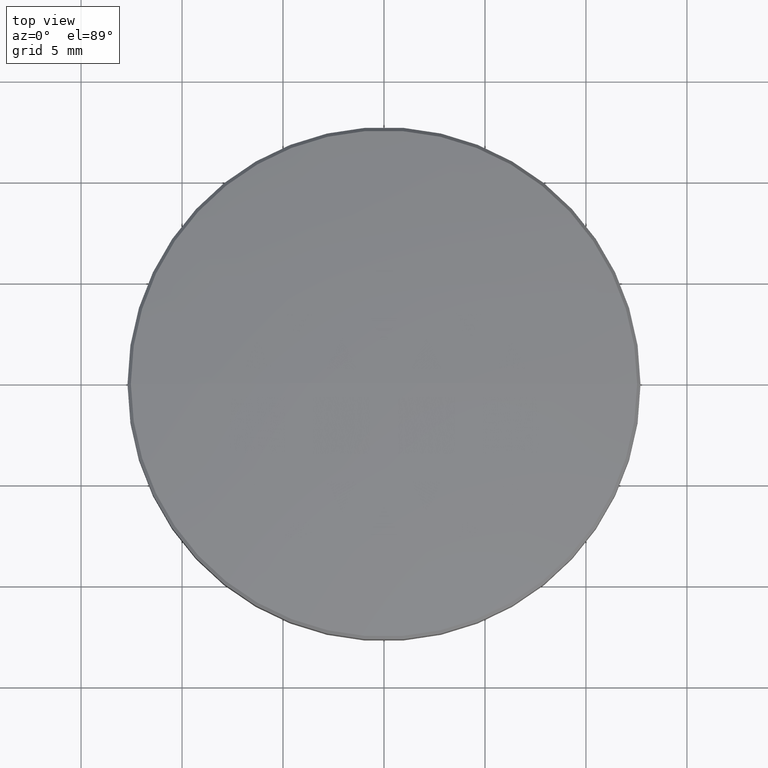
[diagram: clean part render]
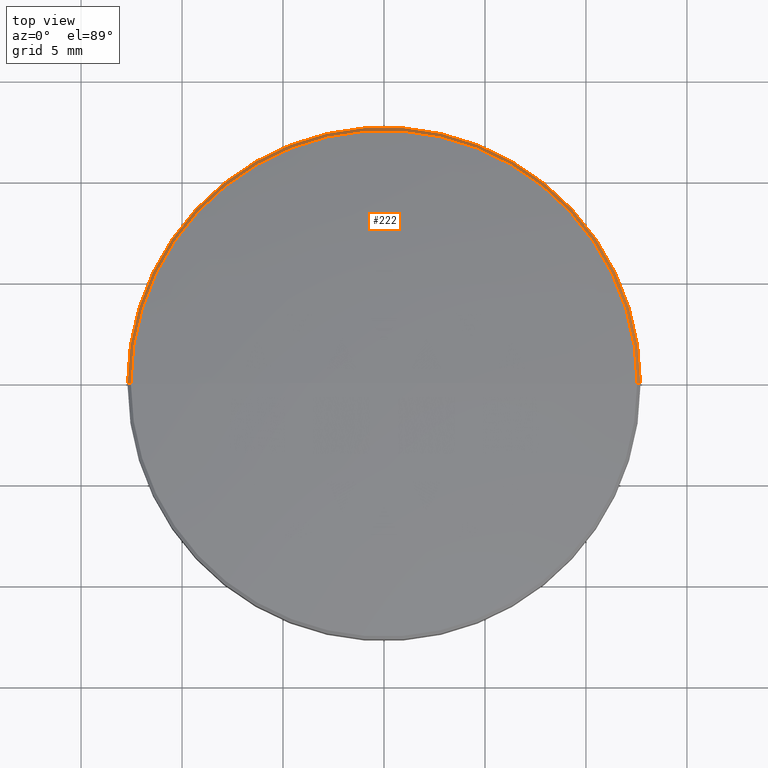
[diagram: same view with one face highlighted and labeled with its STEP entity id]
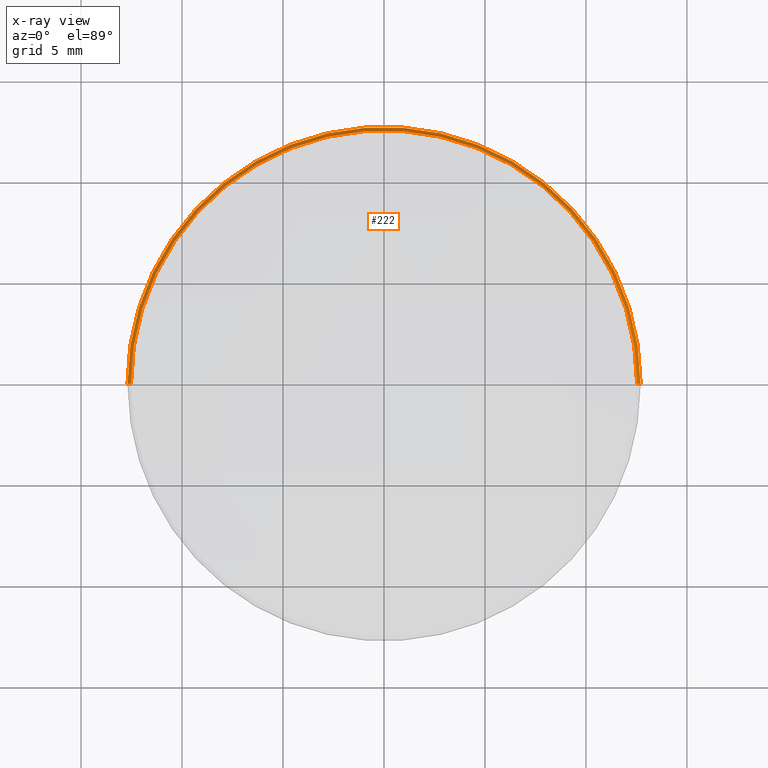
[diagram: x-ray of the same camera — body ghosted, the highlighted face saturated]
A machine part, top view. The second image highlights one B-rep face of the part: STEP entity #222.
The next image is the same camera in x-ray: the body ghosted, the highlighted face saturated — about 0% of this face is hidden behind the body in this view.
In plain terms, the highlighted conical surface has half-angle 39.963 deg.
Its self-contained STEP definition (entity closure, byte-faithful):
#5 = CIRCLE ( 'NONE', #192, 12.53498460677301907 ) ;
#34 = DIRECTION ( 'NONE',  ( 0.000000000000000000, 0.000000000000000000, -1.000000000000000000 ) ) ;
#50 = CARTESIAN_POINT ( 'NONE',  ( 0.000000000000000000, 0.000000000000000000, 3.895154035038178364 ) ) ;
#52 = VERTEX_POINT ( 'NONE', #93 ) ;
#62 = DIRECTION ( 'NONE',  ( 0.000000000000000000, 0.000000000000000000, -1.000000000000000000 ) ) ;
#71 = EDGE_CURVE ( 'NONE', #52, #95, #5, .T. ) ;
#75 = DIRECTION ( 'NONE',  ( -1.000000000000000000, 0.000000000000000000, 0.000000000000000000 ) ) ;
#87 = CARTESIAN_POINT ( 'NONE',  ( -12.53498460677301729, 0.000000000000000000, 3.895154035038178364 ) ) ;
#93 = CARTESIAN_POINT ( 'NONE',  ( 12.53498460677301729, 1.535092877604591061E-15, 3.895154035038178364 ) ) ;
#94 = DIRECTION ( 'NONE',  ( 0.6422915872619319178, 7.865803364595977467E-17, -0.7664603818414543746 ) ) ;
#95 = VERTEX_POINT ( 'NONE', #87 ) ;
#106 = EDGE_CURVE ( 'NONE', #191, #255, #224, .T. ) ;
#108 = AXIS2_PLACEMENT_3D ( 'NONE', #203, #62, #263 ) ;
#117 = FACE_OUTER_BOUND ( 'NONE', #141, .T. ) ;
#121 = CARTESIAN_POINT ( 'NONE',  ( 12.69999999999999929, 1.555301434917138433E-15, 3.698237612947643971 ) ) ;
#126 = EDGE_CURVE ( 'NONE', #52, #255, #155, .T. ) ;
#133 = ORIENTED_EDGE ( 'NONE', *, *, #195, .F. ) ;
#137 = CARTESIAN_POINT ( 'NONE',  ( -12.53498460677301729, 0.000000000000000000, 3.895154035038178364 ) ) ;
#138 = CARTESIAN_POINT ( 'NONE',  ( 12.53498460677301729, 1.535092877604592047E-15, 3.895154035038178364 ) ) ;
#141 = EDGE_LOOP ( 'NONE', ( #256, #257, #173, #133 ) ) ;
#142 = AXIS2_PLACEMENT_3D ( 'NONE', #206, #34, #75 ) ;
#145 = DIRECTION ( 'NONE',  ( -1.000000000000000000, 0.000000000000000000, 0.000000000000000000 ) ) ;
#153 = DIRECTION ( 'NONE',  ( -0.6422915872619319178, 0.000000000000000000, -0.7664603818414543746 ) ) ;
#155 = LINE ( 'NONE', #138, #209 ) ;
#173 = ORIENTED_EDGE ( 'NONE', *, *, #106, .F. ) ;
#174 = DIRECTION ( 'NONE',  ( -0.000000000000000000, -0.000000000000000000, 1.000000000000000000 ) ) ;
#180 = CARTESIAN_POINT ( 'NONE',  ( -12.69999999999999929, 0.000000000000000000, 3.698237612947643971 ) ) ;
#191 = VERTEX_POINT ( 'NONE', #180 ) ;
#192 = AXIS2_PLACEMENT_3D ( 'NONE', #50, #174, #145 ) ;
#195 = EDGE_CURVE ( 'NONE', #95, #191, #239, .T. ) ;
#203 = CARTESIAN_POINT ( 'NONE',  ( 0.000000000000000000, 0.000000000000000000, 3.698237612947643971 ) ) ;
#206 = CARTESIAN_POINT ( 'NONE',  ( 0.000000000000000000, 0.000000000000000000, 3.895154035038178364 ) ) ;
#209 = VECTOR ( 'NONE', #94, 1000.000000000000227 ) ;
#216 = VECTOR ( 'NONE', #153, 1000.000000000000227 ) ;
#222 = ADVANCED_FACE ( 'NONE', ( #117 ), #259, .T. ) ;
#224 = CIRCLE ( 'NONE', #108, 12.69999999999999929 ) ;
#239 = LINE ( 'NONE', #137, #216 ) ;
#255 = VERTEX_POINT ( 'NONE', #121 ) ;
#256 = ORIENTED_EDGE ( 'NONE', *, *, #71, .F. ) ;
#257 = ORIENTED_EDGE ( 'NONE', *, *, #126, .T. ) ;
#259 = CONICAL_SURFACE ( 'NONE', #142, 12.53498460677301729, 0.6974843652732920507 ) ;
#263 = DIRECTION ( 'NONE',  ( 1.000000000000000000, 0.000000000000000000, 0.000000000000000000 ) ) ;